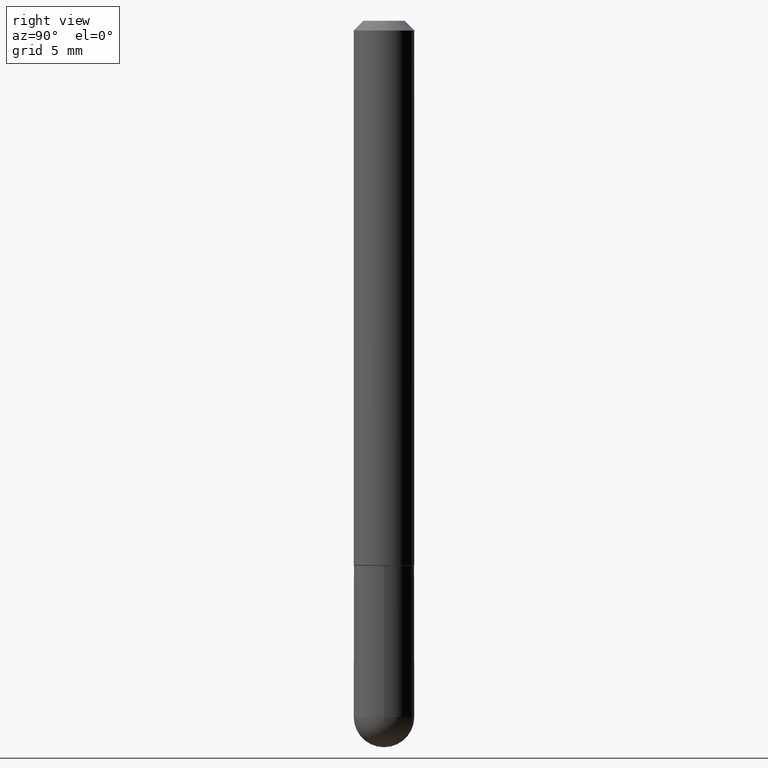
[diagram: clean part render]
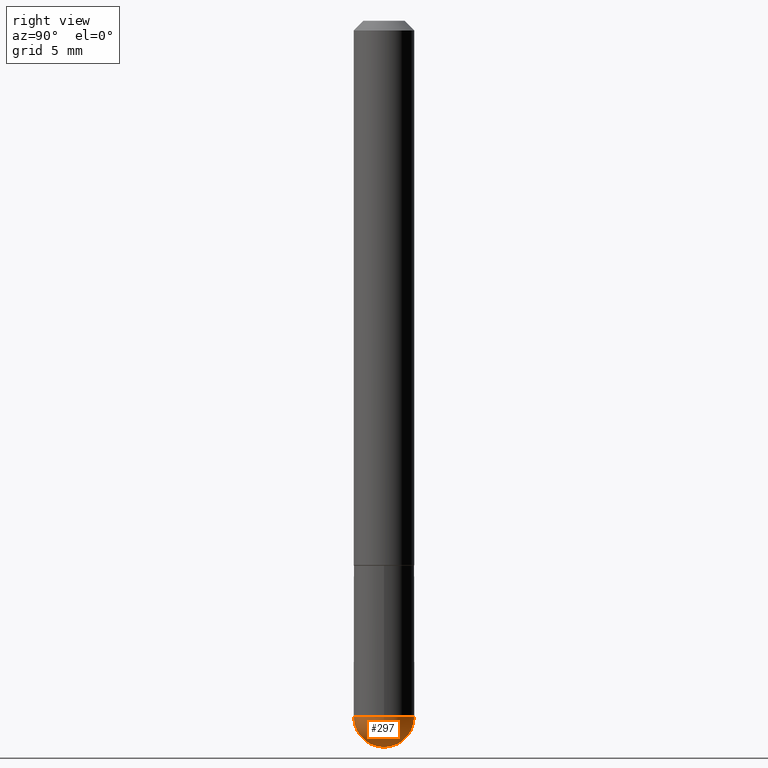
[diagram: same view with one face highlighted and labeled with its STEP entity id]
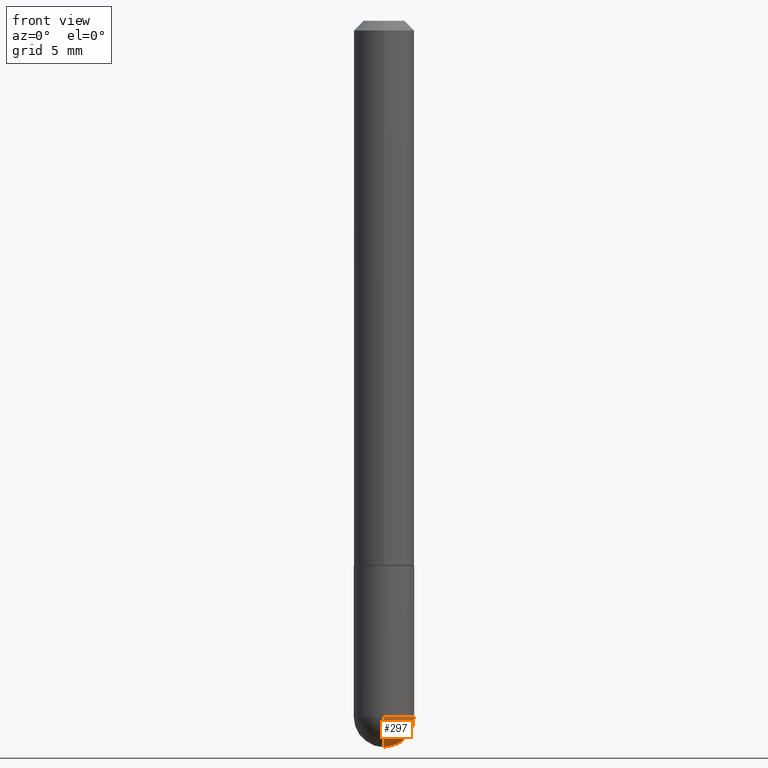
[diagram: same view with one face highlighted and labeled with its STEP entity id]
A machine part, right view. The second image highlights one B-rep face of the part: STEP entity #297.
A second angle (front view) of the same face is appended — the face is thin or edge-on in the first view.
In plain terms, the highlighted spherical surface has radius 1.5875 mm.
Its self-contained STEP definition (entity closure, byte-faithful):
#1 = CIRCLE ( 'NONE', #389, 0.06249999999999995143 ) ;
#12 = VERTEX_POINT ( 'NONE', #412 ) ;
#21 = DIRECTION ( 'NONE',  ( -2.445468806185136597E-29, 3.491481338843145583E-15, 1.000000000000000000 ) ) ;
#38 = DIRECTION ( 'NONE',  ( -7.105427357601001859E-15, -1.000000000000000000, 0.000000000000000000 ) ) ;
#40 = AXIS2_PLACEMENT_3D ( 'NONE', #71, #72, #353 ) ;
#50 = DIRECTION ( 'NONE',  ( 6.982962677686265922E-15, 1.000000000000000000, -4.370956789862807739E-15 ) ) ;
#52 = SPHERICAL_SURFACE ( 'NONE', #207, 0.06250000000000018041 ) ;
#67 = CARTESIAN_POINT ( 'NONE',  ( 3.515361408891134418E-29, -5.019004424587023131E-15, -1.437500000000000222 ) ) ;
#71 = CARTESIAN_POINT ( 'NONE',  ( 3.184241630977247611E-29, -5.493186792727071849E-15, -1.437500000000000000 ) ) ;
#72 = DIRECTION ( 'NONE',  ( 1.000000000000000000, -6.982962677686265922E-15, 4.883557194083112340E-29 ) ) ;
#105 = CARTESIAN_POINT ( 'NONE',  ( 3.339755826017505008E-29, -5.707577355157432999E-15, -1.500000000000000222 ) ) ;
#114 = DIRECTION ( 'NONE',  ( -1.000000000000000000, 6.982962677686265922E-15, -4.883557194083112340E-29 ) ) ;
#128 = AXIS2_PLACEMENT_3D ( 'NONE', #386, #320, #38 ) ;
#129 = FACE_OUTER_BOUND ( 'NONE', #155, .T. ) ;
#130 = DIRECTION ( 'NONE',  ( 1.000000000000000000, -6.982962677686268288E-15, 0.000000000000000000 ) ) ;
#131 = CARTESIAN_POINT ( 'NONE',  ( 4.364351673554256397E-16, 0.06249999999999480971, -1.437500000000000444 ) ) ;
#133 = EDGE_CURVE ( 'NONE', #263, #242, #1, .T. ) ;
#135 = CIRCLE ( 'NONE', #128, 0.06250000000000018041 ) ;
#146 = VERTEX_POINT ( 'NONE', #105 ) ;
#152 = ORIENTED_EDGE ( 'NONE', *, *, #217, .F. ) ;
#155 = EDGE_LOOP ( 'NONE', ( #152, #177, #283, #344 ) ) ;
#160 = CIRCLE ( 'NONE', #256, 0.06249999999999995143 ) ;
#170 = EDGE_CURVE ( 'NONE', #146, #242, #205, .T. ) ;
#177 = ORIENTED_EDGE ( 'NONE', *, *, #170, .T. ) ;
#205 = CIRCLE ( 'NONE', #40, 0.06250000000000018041 ) ;
#207 = AXIS2_PLACEMENT_3D ( 'NONE', #399, #114, #50 ) ;
#217 = EDGE_CURVE ( 'NONE', #146, #12, #135, .T. ) ;
#242 = VERTEX_POINT ( 'NONE', #131 ) ;
#256 = AXIS2_PLACEMENT_3D ( 'NONE', #326, #21, #358 ) ;
#263 = VERTEX_POINT ( 'NONE', #318 ) ;
#283 = ORIENTED_EDGE ( 'NONE', *, *, #133, .F. ) ;
#287 = DIRECTION ( 'NONE',  ( -2.445468806185136597E-29, 3.491481338843145583E-15, 1.000000000000000000 ) ) ;
#297 = ADVANCED_FACE ( 'NONE', ( #129 ), #52, .T. ) ;
#318 = CARTESIAN_POINT ( 'NONE',  ( 0.06249999999999995143, -4.909895632748172453E-15, -1.437500000000000222 ) ) ;
#320 = DIRECTION ( 'NONE',  ( -1.000000000000000000, 7.105427357601001070E-15, -4.926315508542082329E-29 ) ) ;
#326 = CARTESIAN_POINT ( 'NONE',  ( 3.515361408891134418E-29, -5.019004424587023131E-15, -1.437500000000000222 ) ) ;
#344 = ORIENTED_EDGE ( 'NONE', *, *, #388, .F. ) ;
#353 = DIRECTION ( 'NONE',  ( 6.982962677686266711E-15, 1.000000000000000000, 0.000000000000000000 ) ) ;
#358 = DIRECTION ( 'NONE',  ( 1.000000000000000000, -6.982962677686268288E-15, 0.000000000000000000 ) ) ;
#386 = CARTESIAN_POINT ( 'NONE',  ( 3.184241630977247611E-29, -5.493186792727071849E-15, -1.437500000000000000 ) ) ;
#388 = EDGE_CURVE ( 'NONE', #12, #263, #160, .T. ) ;
#389 = AXIS2_PLACEMENT_3D ( 'NONE', #67, #287, #130 ) ;
#399 = CARTESIAN_POINT ( 'NONE',  ( 3.184241630977247611E-29, -5.493186792727071849E-15, -1.437500000000000000 ) ) ;
#412 = CARTESIAN_POINT ( 'NONE',  ( -4.440892098500294840E-16, -0.06250000000000532907, -1.437500000000000000 ) ) ;